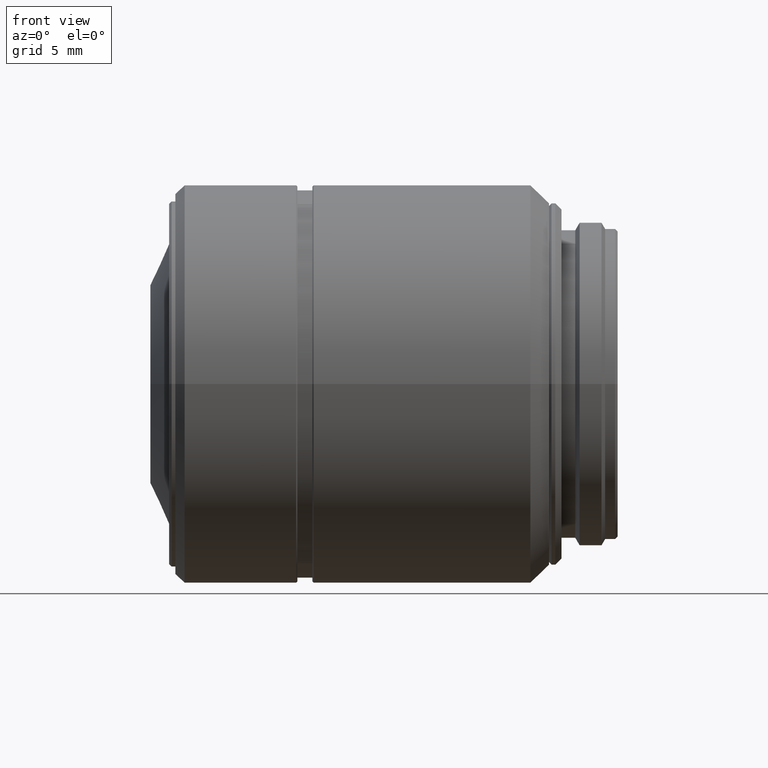
[diagram: clean part render]
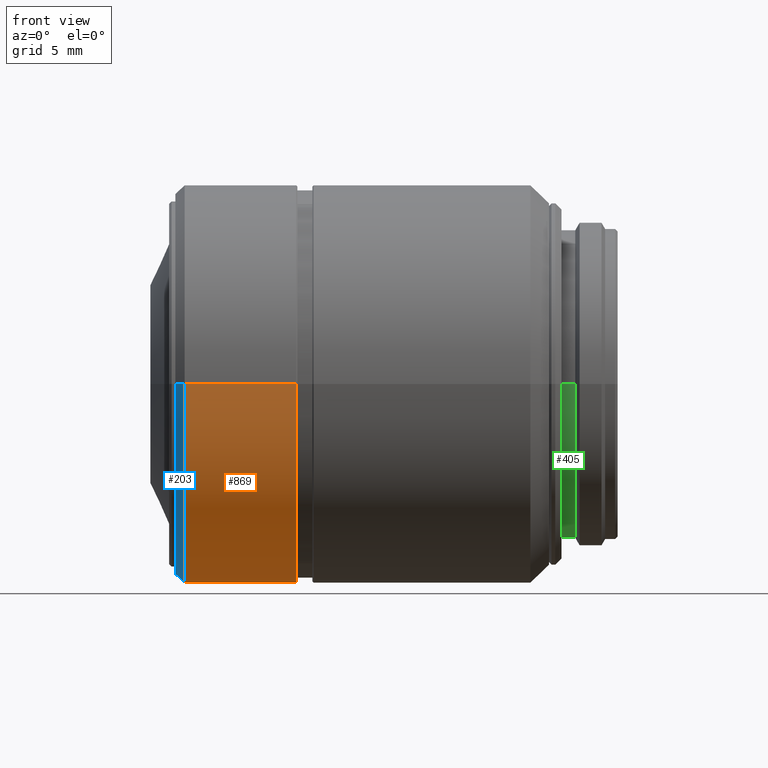
[diagram: same view with three faces highlighted in distinct colors, each labeled with its STEP entity id]
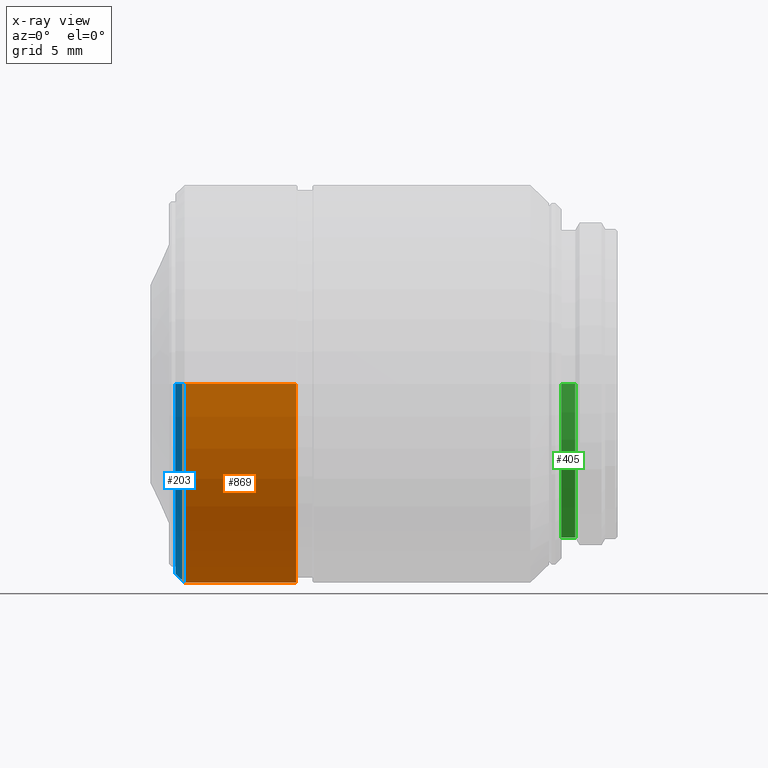
[diagram: x-ray of the same camera — body ghosted, the three highlighted faces saturated]
A machine part, front view with three faces highlighted in distinct colors.
The next image is the same camera in x-ray (body ghosted, the three faces saturated) — at least one of them is partly hidden behind the body in this view.
Their STEP definitions:

[orange] entity #869 — the highlighted cylindrical surface (partial cylindrical patch) has radius 16 mm, axis along (1, 0, 0).
#32 = DIRECTION ( 'NONE',  ( 1.000000000000000000, 0.000000000000000000, 0.000000000000000000 ) ) ;
#71 = DIRECTION ( 'NONE',  ( 0.000000000000000000, 1.000000000000000000, 0.000000000000000000 ) ) ;
#96 = AXIS2_PLACEMENT_3D ( 'NONE', #539, #924, #1223 ) ;
#206 = VERTEX_POINT ( 'NONE', #693 ) ;
#248 = CARTESIAN_POINT ( 'NONE',  ( 19.22499999999999787, 15.99999978895130148, -1.959434852789759936E-15 ) ) ;
#260 = LINE ( 'NONE', #343, #1219 ) ;
#271 = DIRECTION ( 'NONE',  ( 1.000000000000000000, 0.000000000000000000, 0.000000000000000000 ) ) ;
#282 = FACE_OUTER_BOUND ( 'NONE', #296, .T. ) ;
#296 = EDGE_LOOP ( 'NONE', ( #1241, #696, #1003, #601 ) ) ;
#343 = CARTESIAN_POINT ( 'NONE',  ( 19.22499999999999787, -15.99999978895130148, 0.000000000000000000 ) ) ;
#365 = DIRECTION ( 'NONE',  ( 1.000000000000000000, 0.000000000000000000, 0.000000000000000000 ) ) ;
#375 = AXIS2_PLACEMENT_3D ( 'NONE', #1177, #32, #1066 ) ;
#397 = AXIS2_PLACEMENT_3D ( 'NONE', #554, #940, #71 ) ;
#411 = EDGE_CURVE ( 'NONE', #206, #518, #948, .T. ) ;
#518 = VERTEX_POINT ( 'NONE', #687 ) ;
#539 = CARTESIAN_POINT ( 'NONE',  ( 23.69999999999999929, 0.000000000000000000, 0.000000000000000000 ) ) ;
#554 = CARTESIAN_POINT ( 'NONE',  ( 14.75000000000000000, 0.000000000000000000, 0.000000000000000000 ) ) ;
#601 = ORIENTED_EDGE ( 'NONE', *, *, #1134, .F. ) ;
#687 = CARTESIAN_POINT ( 'NONE',  ( 23.69999999999999929, 15.99999978895130148, 0.000000000000000000 ) ) ;
#693 = CARTESIAN_POINT ( 'NONE',  ( 23.69999999999999929, -15.99999978895130148, -1.959434852789759936E-15 ) ) ;
#696 = ORIENTED_EDGE ( 'NONE', *, *, #1179, .T. ) ;
#712 = VECTOR ( 'NONE', #271, 1000.000000000000000 ) ;
#749 = CARTESIAN_POINT ( 'NONE',  ( 14.75000000000000000, -15.99999978895130148, 0.000000000000000000 ) ) ;
#754 = LINE ( 'NONE', #248, #712 ) ;
#770 = CYLINDRICAL_SURFACE ( 'NONE', #375, 15.99999978895130148 ) ;
#789 = CIRCLE ( 'NONE', #397, 15.99999978895130148 ) ;
#869 = ADVANCED_FACE ( 'NONE', ( #282 ), #770, .T. ) ;
#924 = DIRECTION ( 'NONE',  ( 1.000000000000000000, 0.000000000000000000, 0.000000000000000000 ) ) ;
#940 = DIRECTION ( 'NONE',  ( 1.000000000000000000, 0.000000000000000000, 0.000000000000000000 ) ) ;
#948 = CIRCLE ( 'NONE', #96, 15.99999978895130148 ) ;
#953 = CARTESIAN_POINT ( 'NONE',  ( 14.75000000000000000, 15.99999978895130148, -1.959434852789759936E-15 ) ) ;
#1003 = ORIENTED_EDGE ( 'NONE', *, *, #411, .F. ) ;
#1066 = DIRECTION ( 'NONE',  ( 0.000000000000000000, -1.000000000000000000, 0.000000000000000000 ) ) ;
#1114 = VERTEX_POINT ( 'NONE', #749 ) ;
#1117 = EDGE_CURVE ( 'NONE', #1114, #1121, #789, .T. ) ;
#1121 = VERTEX_POINT ( 'NONE', #953 ) ;
#1134 = EDGE_CURVE ( 'NONE', #1114, #206, #260, .T. ) ;
#1177 = CARTESIAN_POINT ( 'NONE',  ( 19.22499999999999787, 0.000000000000000000, 0.000000000000000000 ) ) ;
#1179 = EDGE_CURVE ( 'NONE', #1121, #518, #754, .T. ) ;
#1219 = VECTOR ( 'NONE', #365, 1000.000000000000000 ) ;
#1223 = DIRECTION ( 'NONE',  ( 0.000000000000000000, 1.000000000000000000, 0.000000000000000000 ) ) ;
#1241 = ORIENTED_EDGE ( 'NONE', *, *, #1117, .T. ) ;

[blue] entity #203 — the highlighted conical surface has half-angle 45 deg.
#18 = DIRECTION ( 'NONE',  ( 0.7071067811865474617, 0.7071067811865474617, -8.659560562354911904E-17 ) ) ;
#31 = DIRECTION ( 'NONE',  ( 1.000000000000000000, 0.000000000000000000, 0.000000000000000000 ) ) ;
#71 = DIRECTION ( 'NONE',  ( 0.000000000000000000, 1.000000000000000000, 0.000000000000000000 ) ) ;
#118 = VECTOR ( 'NONE', #790, 1000.000000000000114 ) ;
#122 = DIRECTION ( 'NONE',  ( 0.000000000000000000, -1.000000000000000000, 0.000000000000000000 ) ) ;
#203 = ADVANCED_FACE ( 'NONE', ( #993 ), #413, .T. ) ;
#221 = EDGE_CURVE ( 'NONE', #541, #222, #783, .T. ) ;
#222 = VERTEX_POINT ( 'NONE', #383 ) ;
#268 = ORIENTED_EDGE ( 'NONE', *, *, #221, .T. ) ;
#305 = CARTESIAN_POINT ( 'NONE',  ( 14.75000000000000000, -15.99999978895130148, 0.000000000000000000 ) ) ;
#383 = CARTESIAN_POINT ( 'NONE',  ( 14.00000000000000000, 15.24999978895129971, -1.867586342853699897E-15 ) ) ;
#397 = AXIS2_PLACEMENT_3D ( 'NONE', #554, #940, #71 ) ;
#413 = CONICAL_SURFACE ( 'NONE', #824, 15.99999978895130148, 0.7853981633974476129 ) ;
#488 = DIRECTION ( 'NONE',  ( 0.000000000000000000, 1.000000000000000000, 0.000000000000000000 ) ) ;
#489 = LINE ( 'NONE', #305, #118 ) ;
#541 = VERTEX_POINT ( 'NONE', #982 ) ;
#554 = CARTESIAN_POINT ( 'NONE',  ( 14.75000000000000000, 0.000000000000000000, 0.000000000000000000 ) ) ;
#665 = AXIS2_PLACEMENT_3D ( 'NONE', #1189, #877, #488 ) ;
#695 = LINE ( 'NONE', #1076, #1092 ) ;
#736 = ORIENTED_EDGE ( 'NONE', *, *, #757, .F. ) ;
#749 = CARTESIAN_POINT ( 'NONE',  ( 14.75000000000000000, -15.99999978895130148, 0.000000000000000000 ) ) ;
#753 = ORIENTED_EDGE ( 'NONE', *, *, #854, .T. ) ;
#757 = EDGE_CURVE ( 'NONE', #541, #1114, #489, .T. ) ;
#783 = CIRCLE ( 'NONE', #665, 15.24999978895129971 ) ;
#788 = CARTESIAN_POINT ( 'NONE',  ( 14.75000000000000000, 0.000000000000000000, 0.000000000000000000 ) ) ;
#789 = CIRCLE ( 'NONE', #397, 15.99999978895130148 ) ;
#790 = DIRECTION ( 'NONE',  ( 0.7071067811865474617, -0.7071067811865474617, 0.000000000000000000 ) ) ;
#824 = AXIS2_PLACEMENT_3D ( 'NONE', #788, #31, #122 ) ;
#831 = EDGE_LOOP ( 'NONE', ( #268, #753, #1141, #736 ) ) ;
#854 = EDGE_CURVE ( 'NONE', #222, #1121, #695, .T. ) ;
#877 = DIRECTION ( 'NONE',  ( 1.000000000000000000, 0.000000000000000000, 0.000000000000000000 ) ) ;
#940 = DIRECTION ( 'NONE',  ( 1.000000000000000000, 0.000000000000000000, 0.000000000000000000 ) ) ;
#953 = CARTESIAN_POINT ( 'NONE',  ( 14.75000000000000000, 15.99999978895130148, -1.959434852789759936E-15 ) ) ;
#982 = CARTESIAN_POINT ( 'NONE',  ( 14.00000000000000000, -15.24999978895129971, 0.000000000000000000 ) ) ;
#993 = FACE_OUTER_BOUND ( 'NONE', #831, .T. ) ;
#1076 = CARTESIAN_POINT ( 'NONE',  ( 14.75000000000000000, 15.99999978895130148, -1.959434852789759936E-15 ) ) ;
#1092 = VECTOR ( 'NONE', #18, 1000.000000000000114 ) ;
#1114 = VERTEX_POINT ( 'NONE', #749 ) ;
#1117 = EDGE_CURVE ( 'NONE', #1114, #1121, #789, .T. ) ;
#1121 = VERTEX_POINT ( 'NONE', #953 ) ;
#1141 = ORIENTED_EDGE ( 'NONE', *, *, #1117, .F. ) ;
#1189 = CARTESIAN_POINT ( 'NONE',  ( 14.00000000000000000, 0.000000000000000000, 0.000000000000000000 ) ) ;

[green] entity #405 — the highlighted cylindrical surface (partial cylindrical patch) has radius 12.39 mm, axis along (-1, 0, 0).
#10 = CARTESIAN_POINT ( 'NONE',  ( 45.00000000000000000, 0.000000000000000000, 0.000000000000000000 ) ) ;
#55 = VERTEX_POINT ( 'NONE', #1041 ) ;
#91 = ORIENTED_EDGE ( 'NONE', *, *, #605, .F. ) ;
#162 = LINE ( 'NONE', #701, #990 ) ;
#183 = DIRECTION ( 'NONE',  ( 1.000000000000000000, 0.000000000000000000, 0.000000000000000000 ) ) ;
#194 = CARTESIAN_POINT ( 'NONE',  ( 46.10000000000000142, -12.38999978895130027, 0.000000000000000000 ) ) ;
#202 = CARTESIAN_POINT ( 'NONE',  ( 45.54999999999999716, -12.38999978895130027, -1.517337358297560071E-15 ) ) ;
#242 = DIRECTION ( 'NONE',  ( -1.000000000000000000, 0.000000000000000000, 0.000000000000000000 ) ) ;
#273 = CIRCLE ( 'NONE', #456, 12.38999978895130027 ) ;
#288 = DIRECTION ( 'NONE',  ( 0.000000000000000000, 1.000000000000000000, 0.000000000000000000 ) ) ;
#291 = AXIS2_PLACEMENT_3D ( 'NONE', #10, #794, #288 ) ;
#308 = LINE ( 'NONE', #202, #435 ) ;
#325 = CARTESIAN_POINT ( 'NONE',  ( 46.10000000000000142, 12.38999978895130027, -1.517337358297560071E-15 ) ) ;
#338 = FACE_OUTER_BOUND ( 'NONE', #689, .T. ) ;
#358 = ORIENTED_EDGE ( 'NONE', *, *, #486, .T. ) ;
#363 = VERTEX_POINT ( 'NONE', #325 ) ;
#405 = ADVANCED_FACE ( 'NONE', ( #338 ), #1006, .T. ) ;
#435 = VECTOR ( 'NONE', #1174, 1000.000000000000000 ) ;
#456 = AXIS2_PLACEMENT_3D ( 'NONE', #574, #183, #1053 ) ;
#458 = EDGE_CURVE ( 'NONE', #363, #1213, #162, .T. ) ;
#466 = EDGE_CURVE ( 'NONE', #741, #55, #308, .T. ) ;
#486 = EDGE_CURVE ( 'NONE', #55, #1213, #1235, .T. ) ;
#508 = ORIENTED_EDGE ( 'NONE', *, *, #458, .F. ) ;
#509 = DIRECTION ( 'NONE',  ( -1.000000000000000000, 0.000000000000000000, 0.000000000000000000 ) ) ;
#521 = DIRECTION ( 'NONE',  ( 0.000000000000000000, 1.000000000000000000, 0.000000000000000000 ) ) ;
#524 = AXIS2_PLACEMENT_3D ( 'NONE', #1118, #242, #521 ) ;
#574 = CARTESIAN_POINT ( 'NONE',  ( 46.10000000000000142, 0.000000000000000000, 0.000000000000000000 ) ) ;
#605 = EDGE_CURVE ( 'NONE', #741, #363, #273, .T. ) ;
#689 = EDGE_LOOP ( 'NONE', ( #358, #508, #91, #1246 ) ) ;
#701 = CARTESIAN_POINT ( 'NONE',  ( 45.54999999999999716, 12.38999978895130027, 0.000000000000000000 ) ) ;
#741 = VERTEX_POINT ( 'NONE', #194 ) ;
#794 = DIRECTION ( 'NONE',  ( 1.000000000000000000, 0.000000000000000000, 0.000000000000000000 ) ) ;
#871 = CARTESIAN_POINT ( 'NONE',  ( 45.00000000000000000, 12.38999978895130027, 0.000000000000000000 ) ) ;
#990 = VECTOR ( 'NONE', #509, 1000.000000000000000 ) ;
#1006 = CYLINDRICAL_SURFACE ( 'NONE', #524, 12.38999978895130027 ) ;
#1041 = CARTESIAN_POINT ( 'NONE',  ( 45.00000000000000000, -12.38999978895130027, -1.517337358297560071E-15 ) ) ;
#1053 = DIRECTION ( 'NONE',  ( 0.000000000000000000, 1.000000000000000000, 0.000000000000000000 ) ) ;
#1118 = CARTESIAN_POINT ( 'NONE',  ( 45.54999999999999716, 0.000000000000000000, 0.000000000000000000 ) ) ;
#1174 = DIRECTION ( 'NONE',  ( -1.000000000000000000, 0.000000000000000000, 0.000000000000000000 ) ) ;
#1213 = VERTEX_POINT ( 'NONE', #871 ) ;
#1235 = CIRCLE ( 'NONE', #291, 12.38999978895130027 ) ;
#1246 = ORIENTED_EDGE ( 'NONE', *, *, #466, .T. ) ;